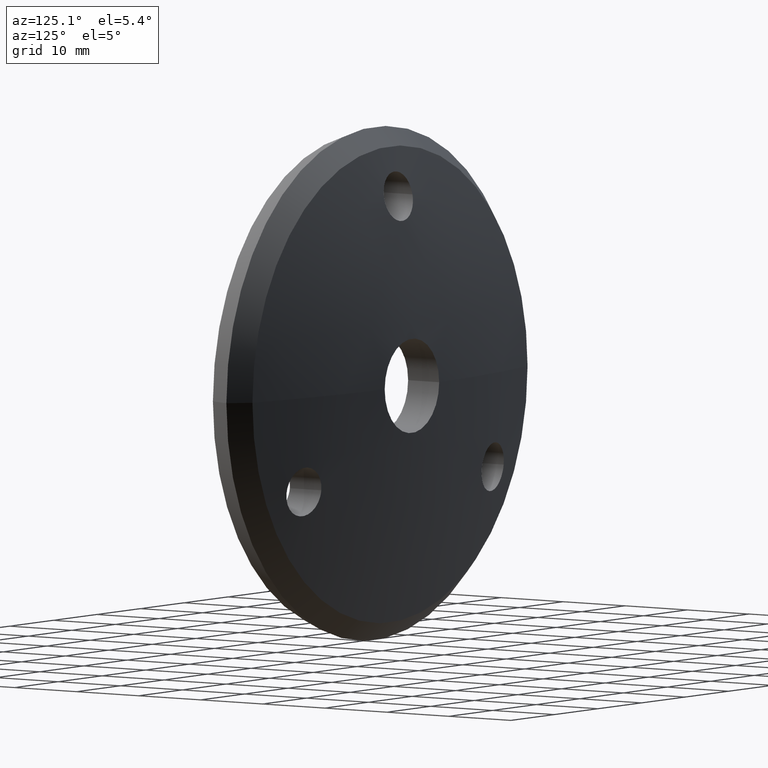
[diagram: clean part render]
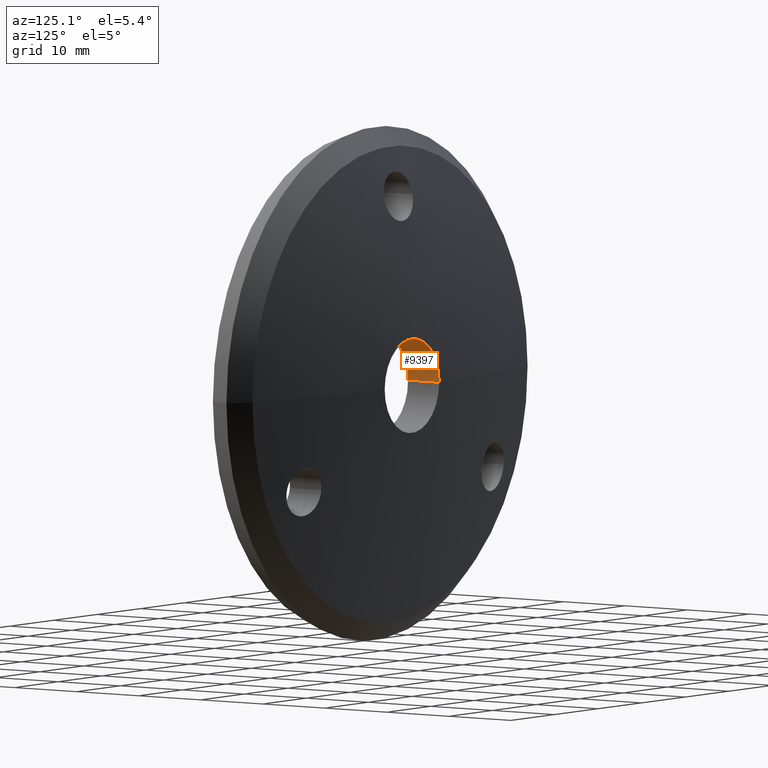
[diagram: same view with one face highlighted and labeled with its STEP entity id]
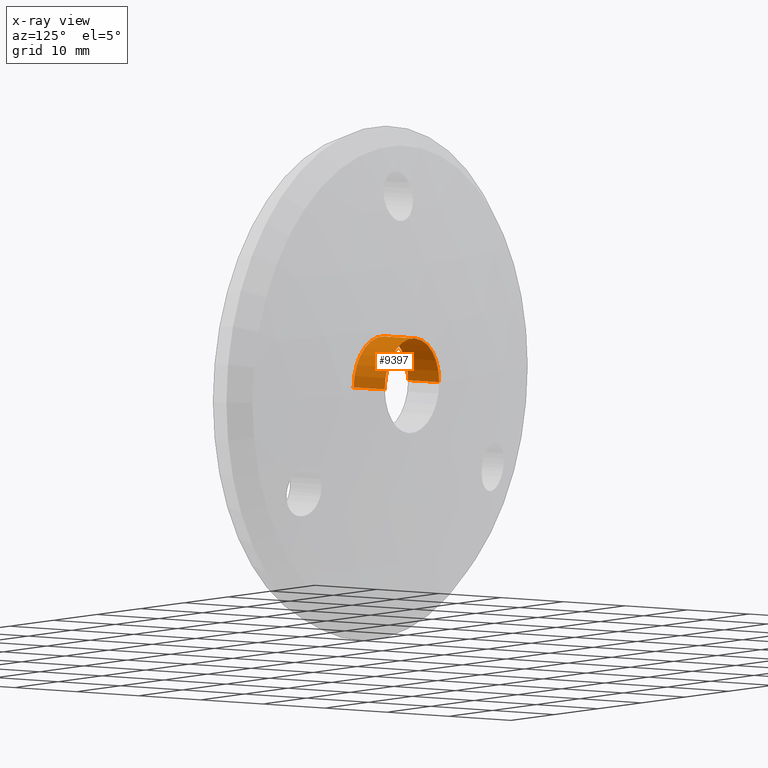
[diagram: x-ray of the same camera — body ghosted, the highlighted face saturated]
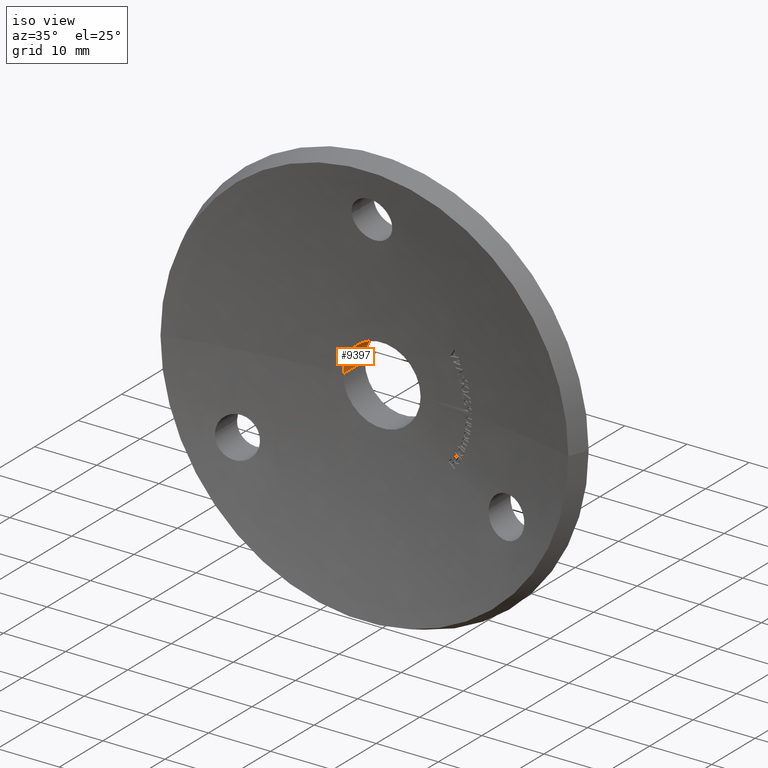
[diagram: same view with one face highlighted and labeled with its STEP entity id]
A machine part, auxiliary view. The second image highlights one B-rep face of the part: STEP entity #9397.
The next image is the same camera in x-ray: the body ghosted, the highlighted face saturated — about 0% of this face is hidden behind the body in this view.
A second angle (iso view) of the same face is appended — the face is thin or edge-on in the first view.
In plain terms, the highlighted cylindrical surface (partial cylindrical patch) has radius 6.25 mm, axis along (-0, 1, -0).
Its self-contained STEP definition (entity closure, byte-faithful):
#326 = CARTESIAN_POINT ( 'NONE',  ( 6.249999999999849898, -0.1478206608159504665, 0.000000000000000000 ) ) ;
#365 = DIRECTION ( 'NONE',  ( -1.873600393855974325E-19, 1.000000000000000000, -0.000000000000000000 ) ) ;
#1325 = VERTEX_POINT ( 'NONE', #2002 ) ;
#1661 = CARTESIAN_POINT ( 'NONE',  ( -6.249999999999849898, 4.857572018106197653, -2.314582450388493275E-15 ) ) ;
#2002 = CARTESIAN_POINT ( 'NONE',  ( -6.249999999999849898, -0.1478206608159504665, -2.393244512369030344E-15 ) ) ;
#2175 = VECTOR ( 'NONE', #3191, 1000.000000000000000 ) ;
#2198 = VERTEX_POINT ( 'NONE', #326 ) ;
#2227 = ORIENTED_EDGE ( 'NONE', *, *, #8318, .T. ) ;
#2512 = CARTESIAN_POINT ( 'NONE',  ( 6.249999999999849898, 4.857572018106197653, 0.000000000000000000 ) ) ;
#2807 = EDGE_CURVE ( 'NONE', #1325, #3376, #11184, .T. ) ;
#3191 = DIRECTION ( 'NONE',  ( -1.873600393855974325E-19, 1.000000000000000000, -0.000000000000000000 ) ) ;
#3222 = VECTOR ( 'NONE', #3631, 1000.000000000000000 ) ;
#3376 = VERTEX_POINT ( 'NONE', #1661 ) ;
#3631 = DIRECTION ( 'NONE',  ( -1.873600393855974325E-19, 1.000000000000000000, -0.000000000000000000 ) ) ;
#4123 = EDGE_LOOP ( 'NONE', ( #12171, #8492, #7000, #2227 ) ) ;
#4359 = AXIS2_PLACEMENT_3D ( 'NONE', #12127, #7229, #9308 ) ;
#4749 = DIRECTION ( 'NONE',  ( -1.000000000000000000, 0.000000000000000000, 0.000000000000000000 ) ) ;
#4936 = CARTESIAN_POINT ( 'NONE',  ( -6.249999999999849898, 5.000000000000004441, 0.000000000000000000 ) ) ;
#6864 = VERTEX_POINT ( 'NONE', #2512 ) ;
#7000 = ORIENTED_EDGE ( 'NONE', *, *, #2807, .T. ) ;
#7229 = DIRECTION ( 'NONE',  ( -1.873600393855974325E-19, 1.000000000000000000, -0.000000000000000000 ) ) ;
#8226 = LINE ( 'NONE', #11292, #3222 ) ;
#8318 = EDGE_CURVE ( 'NONE', #3376, #6864, #9476, .T. ) ;
#8492 = ORIENTED_EDGE ( 'NONE', *, *, #9626, .F. ) ;
#8843 = CARTESIAN_POINT ( 'NONE',  ( -9.101148846307532162E-19, 4.857572018106197653, 0.000000000000000000 ) ) ;
#9101 = AXIS2_PLACEMENT_3D ( 'NONE', #8843, #365, #11783 ) ;
#9308 = DIRECTION ( 'NONE',  ( -1.000000000000000000, 0.000000000000000000, 0.000000000000000000 ) ) ;
#9397 = ADVANCED_FACE ( 'NONE', ( #10360 ), #10954, .F. ) ;
#9476 = CIRCLE ( 'NONE', #9101, 6.249999999999849898 ) ;
#9606 = CIRCLE ( 'NONE', #4359, 6.249999999999849898 ) ;
#9626 = EDGE_CURVE ( 'NONE', #1325, #2198, #9606, .T. ) ;
#10293 = CARTESIAN_POINT ( 'NONE',  ( -9.368001969279880053E-19, 5.000000000000004441, 0.000000000000000000 ) ) ;
#10360 = FACE_OUTER_BOUND ( 'NONE', #4123, .T. ) ;
#10954 = CYLINDRICAL_SURFACE ( 'NONE', #12041, 6.249999999999849898 ) ;
#11184 = LINE ( 'NONE', #4936, #2175 ) ;
#11237 = DIRECTION ( 'NONE',  ( -1.873600393855974325E-19, 1.000000000000000000, -0.000000000000000000 ) ) ;
#11292 = CARTESIAN_POINT ( 'NONE',  ( 6.249999999999849898, 5.000000000000004441, 7.654042494670774196E-16 ) ) ;
#11783 = DIRECTION ( 'NONE',  ( -1.000000000000000000, 0.000000000000000000, 0.000000000000000000 ) ) ;
#12002 = EDGE_CURVE ( 'NONE', #2198, #6864, #8226, .T. ) ;
#12041 = AXIS2_PLACEMENT_3D ( 'NONE', #10293, #11237, #4749 ) ;
#12127 = CARTESIAN_POINT ( 'NONE',  ( 2.769568483248144150E-20, -0.1478206608159504665, 0.000000000000000000 ) ) ;
#12171 = ORIENTED_EDGE ( 'NONE', *, *, #12002, .F. ) ;